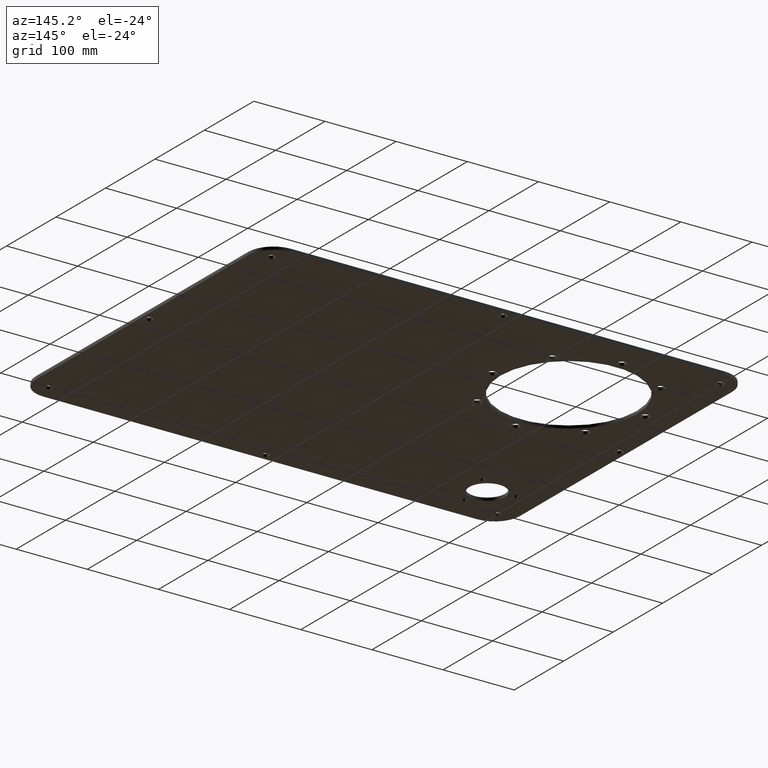
[diagram: clean part render]
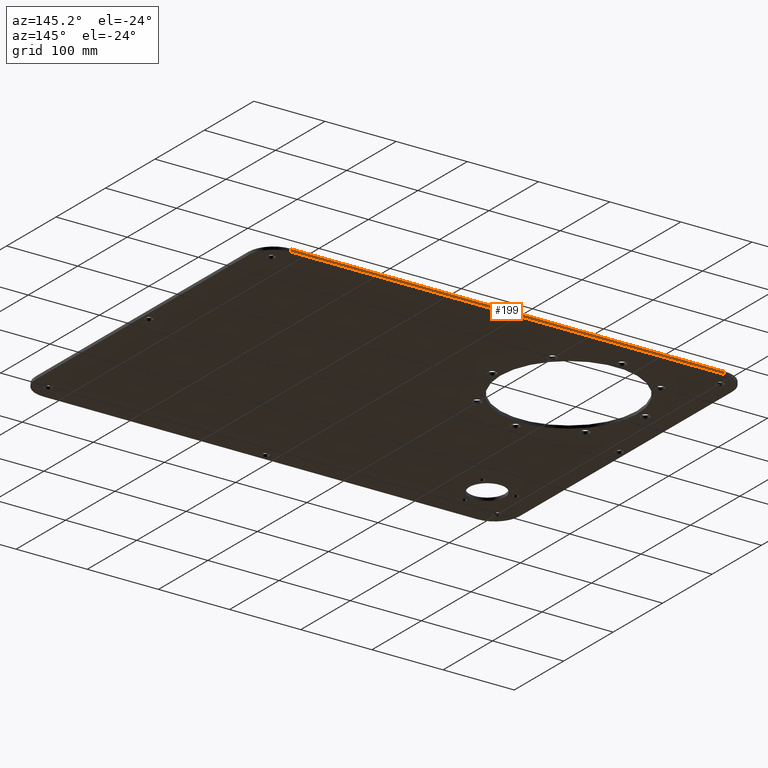
[diagram: same view with one face highlighted and labeled with its STEP entity id]
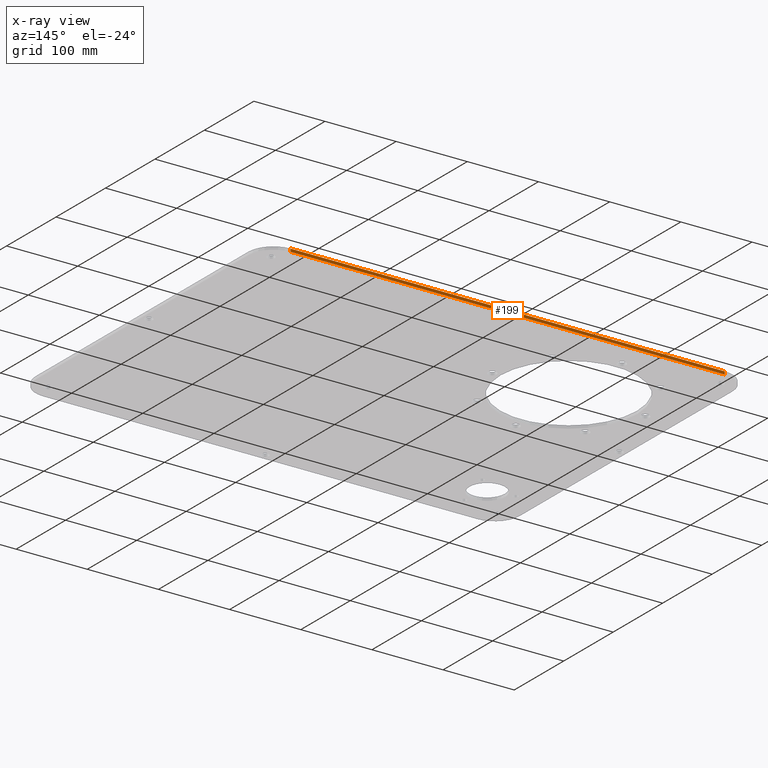
[diagram: x-ray of the same camera — body ghosted, the highlighted face saturated]
A machine part, auxiliary view. The second image highlights one B-rep face of the part: STEP entity #199.
The next image is the same camera in x-ray: the body ghosted, the highlighted face saturated — about 0% of this face is hidden behind the body in this view.
In plain terms, the highlighted planar face has unit normal (0, -1, 0).
Its self-contained STEP definition (entity closure, byte-faithful):
#199=ADVANCED_FACE('',(#236),#227,.F.);
#227=PLANE('',#635);
#236=FACE_OUTER_BOUND('',#246,.T.);
#246=EDGE_LOOP('',(#358,#359,#360,#361));
#358=ORIENTED_EDGE('',*,*,#543,.T.);
#359=ORIENTED_EDGE('',*,*,#544,.F.);
#360=ORIENTED_EDGE('',*,*,#545,.F.);
#361=ORIENTED_EDGE('',*,*,#541,.T.);
#478=VERTEX_POINT('',#919);
#479=VERTEX_POINT('',#921);
#480=VERTEX_POINT('',#925);
#481=VERTEX_POINT('',#927);
#541=EDGE_CURVE('',#479,#478,#602,.T.);
#543=EDGE_CURVE('',#478,#480,#603,.T.);
#544=EDGE_CURVE('',#481,#480,#604,.T.);
#545=EDGE_CURVE('',#479,#481,#605,.T.);
#602=LINE('',#920,#618);
#603=LINE('',#924,#619);
#604=LINE('',#926,#620);
#605=LINE('',#928,#621);
#618=VECTOR('',#738,1.);
#619=VECTOR('',#743,1.);
#620=VECTOR('',#744,1.);
#621=VECTOR('',#745,1.);
#635=AXIS2_PLACEMENT_3D('',#929,#746,#747);
#738=DIRECTION('',(0.,0.,-1.));
#743=DIRECTION('',(-1.,0.,0.));
#744=DIRECTION('',(0.,0.,-1.));
#745=DIRECTION('',(-1.,0.,0.));
#746=DIRECTION('',(0.,-1.,0.));
#747=DIRECTION('',(0.,0.,-1.));
#919=CARTESIAN_POINT('',(305.,-1650.,0.));
#920=CARTESIAN_POINT('',(305.,-1650.,4.));
#921=CARTESIAN_POINT('',(305.,-1650.,4.));
#924=CARTESIAN_POINT('',(305.,-1650.,0.));
#925=CARTESIAN_POINT('',(-305.,-1650.,0.));
#926=CARTESIAN_POINT('',(-305.,-1650.,4.));
#927=CARTESIAN_POINT('',(-305.,-1650.,4.));
#928=CARTESIAN_POINT('',(305.,-1650.,4.));
#929=CARTESIAN_POINT('',(305.,-1650.,4.));